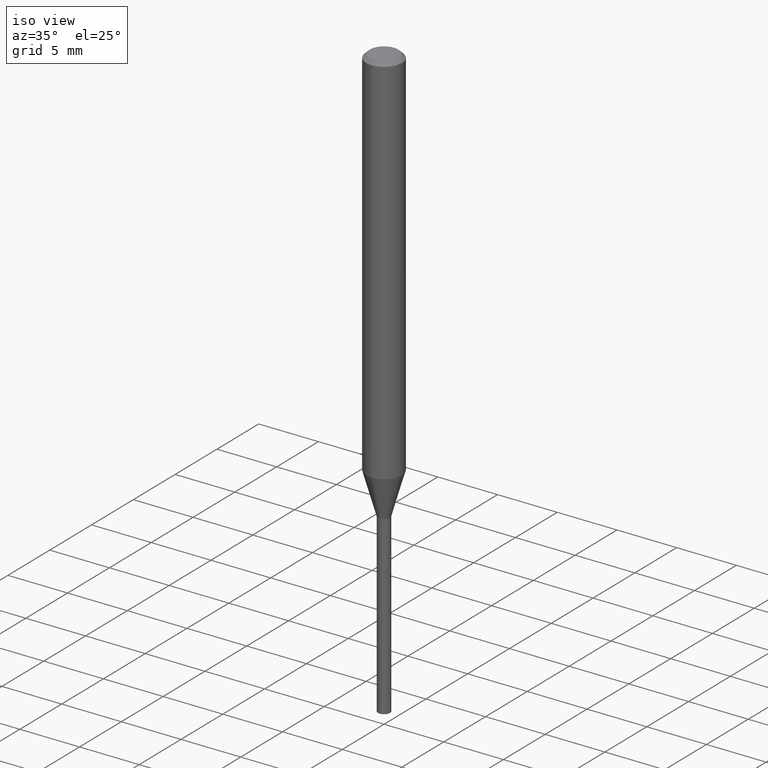
[diagram: clean part render]
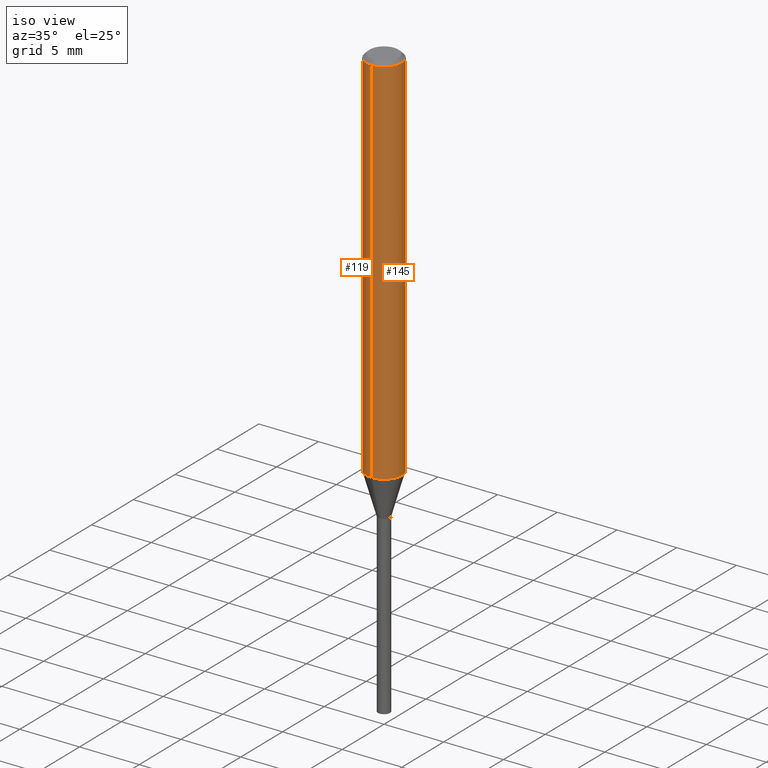
[diagram: same view with one multi-face feature highlighted, each face labeled with its STEP entity id]
A machine part, iso view. The highlighted faces form ONE feature: a constant-radius fillet chain: 2 tangent blend faces with common blend radius 1.5 mm. The faces share edges in the B-rep.
Their STEP definitions:
[1] entity #119 (Cylinder):
#119=ADVANCED_FACE('',(#259),#260,.T.);
#135=EDGE_CURVE('',#165,#139,#277,.T.);
#139=VERTEX_POINT('',#281);
#161=EDGE_CURVE('',#197,#139,#306,.T.);
#165=VERTEX_POINT('',#310);
#183=VERTEX_POINT('',#331);
#191=EDGE_CURVE('',#183,#197,#340,.T.);
#197=VERTEX_POINT('',#346);
#201=EDGE_CURVE('',#165,#183,#350,.T.);
#259=FACE_OUTER_BOUND('',#405,.T.);
#260=CYLINDRICAL_SURFACE('',#406,1.5);
#277=CIRCLE('',#431,1.5);
#281=CARTESIAN_POINT('',(0.0,1.5,-31.513));
#306=LINE('',#469,#470);
#310=CARTESIAN_POINT('',(1.83690953073357E-016,-1.5,-31.513));
#331=CARTESIAN_POINT('',(1.83690953073357E-016,-1.5,-0.300000000000001));
#340=CIRCLE('',#512,1.5);
#346=CARTESIAN_POINT('',(0.0,1.5,-0.300000000000001));
#350=LINE('',#526,#527);
#405=EDGE_LOOP('',(#581,#582,#583,#584));
#406=AXIS2_PLACEMENT_3D('',#585,#586,#587);
#431=AXIS2_PLACEMENT_3D('',#605,#606,#607);
#469=CARTESIAN_POINT('',(-1.83690953073357E-016,1.5,-15.9065));
#470=VECTOR('',#644,1.0);
#512=AXIS2_PLACEMENT_3D('',#684,#685,#686);
#526=CARTESIAN_POINT('',(1.83690953073357E-016,-1.5,-15.9065));
#527=VECTOR('',#691,1.0);
#581=ORIENTED_EDGE('',*,*,#161,.T.);
#582=ORIENTED_EDGE('',*,*,#135,.F.);
#583=ORIENTED_EDGE('',*,*,#201,.T.);
#584=ORIENTED_EDGE('',*,*,#191,.T.);
#585=CARTESIAN_POINT('',(0.0,0.0,-15.9065));
#586=DIRECTION('',(-0.0,-0.0,1.0));
#587=DIRECTION('',(0.0,1.0,0.0));
#605=CARTESIAN_POINT('',(0.0,0.0,-31.513));
#606=DIRECTION('',(0.0,0.0,-1.0));
#607=DIRECTION('',(0.0,1.0,0.0));
#644=DIRECTION('',(0.0,0.0,-1.0));
#684=CARTESIAN_POINT('',(0.0,0.0,-0.300000000000001));
#685=DIRECTION('',(0.0,0.0,-1.0));
#686=DIRECTION('',(0.0,1.0,0.0));
#691=DIRECTION('',(-0.0,-0.0,1.0));
[2] entity #145 (Cylinder):
#91=EDGE_CURVE('',#197,#183,#226,.T.);
#139=VERTEX_POINT('',#281);
#145=ADVANCED_FACE('',(#287),#288,.T.);
#161=EDGE_CURVE('',#197,#139,#306,.T.);
#165=VERTEX_POINT('',#310);
#183=VERTEX_POINT('',#331);
#185=EDGE_CURVE('',#139,#165,#333,.T.);
#197=VERTEX_POINT('',#346);
#201=EDGE_CURVE('',#165,#183,#350,.T.);
#226=CIRCLE('',#369,1.5);
#281=CARTESIAN_POINT('',(0.0,1.5,-31.513));
#287=FACE_OUTER_BOUND('',#444,.T.);
#288=CYLINDRICAL_SURFACE('',#445,1.5);
#306=LINE('',#469,#470);
#310=CARTESIAN_POINT('',(1.83690953073357E-016,-1.5,-31.513));
#331=CARTESIAN_POINT('',(1.83690953073357E-016,-1.5,-0.300000000000001));
#333=CIRCLE('',#504,1.5);
#346=CARTESIAN_POINT('',(0.0,1.5,-0.300000000000001));
#350=LINE('',#526,#527);
#369=AXIS2_PLACEMENT_3D('',#535,#536,#537);
#444=EDGE_LOOP('',(#613,#614,#615,#616));
#445=AXIS2_PLACEMENT_3D('',#617,#618,#619);
#469=CARTESIAN_POINT('',(-1.83690953073357E-016,1.5,-15.9065));
#470=VECTOR('',#644,1.0);
#504=AXIS2_PLACEMENT_3D('',#675,#676,#677);
#526=CARTESIAN_POINT('',(1.83690953073357E-016,-1.5,-15.9065));
#527=VECTOR('',#691,1.0);
#535=CARTESIAN_POINT('',(0.0,0.0,-0.300000000000001));
#536=DIRECTION('',(0.0,0.0,-1.0));
#537=DIRECTION('',(0.0,1.0,0.0));
#613=ORIENTED_EDGE('',*,*,#161,.F.);
#614=ORIENTED_EDGE('',*,*,#91,.T.);
#615=ORIENTED_EDGE('',*,*,#201,.F.);
#616=ORIENTED_EDGE('',*,*,#185,.F.);
#617=CARTESIAN_POINT('',(0.0,0.0,-15.9065));
#618=DIRECTION('',(-0.0,-0.0,1.0));
#619=DIRECTION('',(0.0,1.0,0.0));
#644=DIRECTION('',(0.0,0.0,-1.0));
#675=CARTESIAN_POINT('',(0.0,0.0,-31.513));
#676=DIRECTION('',(0.0,0.0,-1.0));
#677=DIRECTION('',(0.0,1.0,0.0));
#691=DIRECTION('',(-0.0,-0.0,1.0));